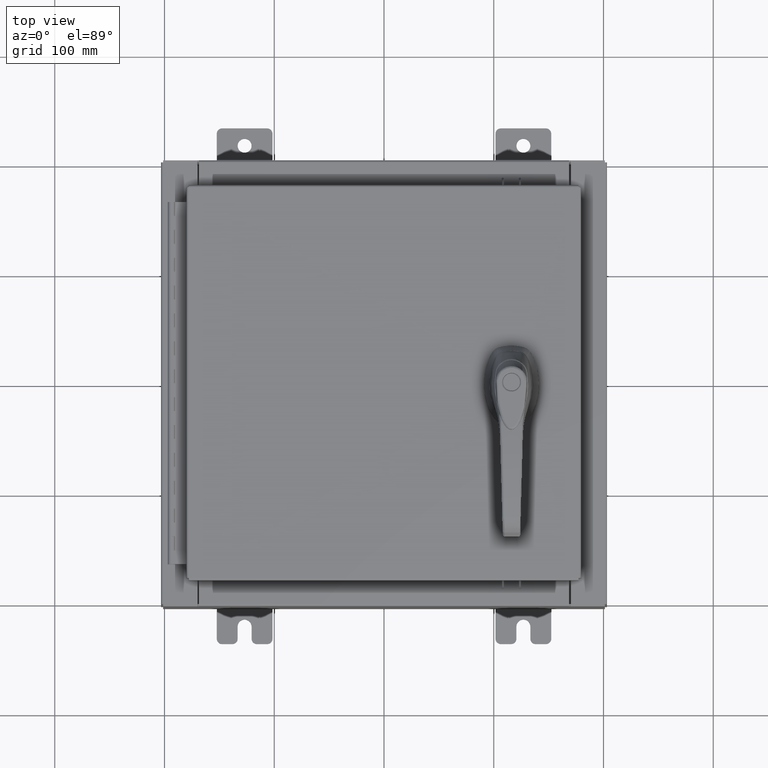
[diagram: clean part render]
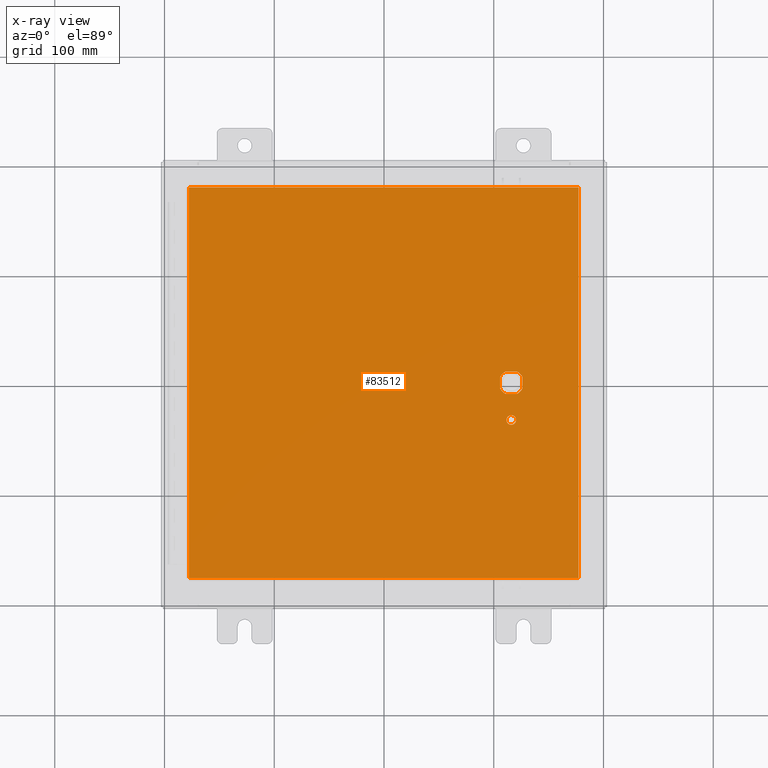
[diagram: x-ray — body ghosted, one internal face saturated and labeled with its STEP entity id]
A machine part, top view, then the same camera in x-ray: the body is ghosted and one INTERNAL B-rep face — a face not visible from any outside direction — is saturated and labeled: STEP entity #83512.
In plain terms, the highlighted planar face has unit normal (0, 0, -1).
Its self-contained STEP definition (entity closure, byte-faithful):
#3910 = VERTEX_POINT ( 'NONE', #91692 ) ;
#4758 = VERTEX_POINT ( 'NONE', #72964 ) ;
#5798 = CARTESIAN_POINT ( 'NONE',  ( 4.778227370756312100, 0.4029999999999250300, -0.07470000000000003000 ) ) ;
#6132 = DIRECTION ( 'NONE',  ( -1.000000000000000000, 0.0000000000000000000, 0.0000000000000000000 ) ) ;
#6270 = DIRECTION ( 'NONE',  ( -0.0000000000000000000, -0.0000000000000000000, 1.000000000000000000 ) ) ;
#6605 = DIRECTION ( 'NONE',  ( -1.000000000000000000, 0.0000000000000000000, 0.0000000000000000000 ) ) ;
#7821 = FACE_BOUND ( 'NONE', #38919, .T. ) ;
#8196 = EDGE_CURVE ( 'NONE', #69418, #85312, #105364, .T. ) ;
#8327 = CARTESIAN_POINT ( 'NONE',  ( 6.990299999999998600, 7.006300000000000400, -0.07470000000000021100 ) ) ;
#9001 = DIRECTION ( 'NONE',  ( 0.0000000000000000000, -1.000000000000000000, 0.0000000000000000000 ) ) ;
#10261 = EDGE_CURVE ( 'NONE', #33672, #28836, #96371, .T. ) ;
#10467 = ORIENTED_EDGE ( 'NONE', *, *, #8196, .T. ) ;
#10896 = VERTEX_POINT ( 'NONE', #104746 ) ;
#11525 = EDGE_CURVE ( 'NONE', #3910, #16281, #13104, .T. ) ;
#12029 = CARTESIAN_POINT ( 'NONE',  ( 0.0000000000000000000, 0.4029999999999252000, -0.07470000000000003000 ) ) ;
#12117 = DIRECTION ( 'NONE',  ( 0.0000000000000000000, 0.0000000000000000000, -1.000000000000000000 ) ) ;
#13104 = LINE ( 'NONE', #67116, #97506 ) ;
#13418 = VERTEX_POINT ( 'NONE', #19607 ) ;
#15057 = CARTESIAN_POINT ( 'NONE',  ( 4.175000000000076200, 0.0000000000000000000, -0.07470000000000003000 ) ) ;
#16017 = CARTESIAN_POINT ( 'NONE',  ( 4.406500000000002100, -1.338000000000000100, -0.07470000000000003000 ) ) ;
#16085 = DIRECTION ( 'NONE',  ( -0.0000000000000000000, -0.0000000000000000000, 1.000000000000000000 ) ) ;
#16281 = VERTEX_POINT ( 'NONE', #70799 ) ;
#16432 = CARTESIAN_POINT ( 'NONE',  ( 4.578000000000002100, -1.338000000000000100, -0.07470000000000003000 ) ) ;
#16748 = LINE ( 'NONE', #40681, #35946 ) ;
#19607 = CARTESIAN_POINT ( 'NONE',  ( 4.980999999999927900, -0.2002273707563080300, -0.07470000000000003000 ) ) ;
#19616 = AXIS2_PLACEMENT_3D ( 'NONE', #16432, #73615, #24665 ) ;
#24665 = DIRECTION ( 'NONE',  ( -1.000000000000000000, 0.0000000000000000000, 0.0000000000000000000 ) ) ;
#25997 = DIRECTION ( 'NONE',  ( 0.0000000000000000000, 1.000000000000000000, 0.0000000000000000000 ) ) ;
#26224 = EDGE_LOOP ( 'NONE', ( #50381, #61666, #93583, #70624 ) ) ;
#27062 = EDGE_CURVE ( 'NONE', #39515, #13418, #42378, .T. ) ;
#27109 = AXIS2_PLACEMENT_3D ( 'NONE', #43903, #101053, #52122 ) ;
#28832 = LINE ( 'NONE', #12029, #72277 ) ;
#28836 = VERTEX_POINT ( 'NONE', #101077 ) ;
#29290 = CARTESIAN_POINT ( 'NONE',  ( 4.778227370756312100, -0.4029999999999252000, -0.07470000000000003000 ) ) ;
#29554 = FACE_OUTER_BOUND ( 'NONE', #26224, .T. ) ;
#31612 = VECTOR ( 'NONE', #88662, 39.37007874015748100 ) ;
#32623 = ORIENTED_EDGE ( 'NONE', *, *, #101354, .T. ) ;
#33377 = AXIS2_PLACEMENT_3D ( 'NONE', #55256, #6270, #63486 ) ;
#33557 = VERTEX_POINT ( 'NONE', #5798 ) ;
#33672 = VERTEX_POINT ( 'NONE', #81545 ) ;
#35101 = LINE ( 'NONE', #41797, #78491 ) ;
#35946 = VECTOR ( 'NONE', #89590, 39.37007874015748100 ) ;
#36062 = EDGE_CURVE ( 'NONE', #28836, #39515, #35101, .T. ) ;
#36268 = LINE ( 'NONE', #8327, #41394 ) ;
#38919 = EDGE_LOOP ( 'NONE', ( #72654, #72024, #76697, #57111, #32623, #83471, #81635, #101330 ) ) ;
#39515 = VERTEX_POINT ( 'NONE', #29290 ) ;
#40681 = CARTESIAN_POINT ( 'NONE',  ( -6.990300000000001300, -7.006300000000000400, -0.07470000000000021100 ) ) ;
#41394 = VECTOR ( 'NONE', #58012, 39.37007874015748100 ) ;
#41797 = CARTESIAN_POINT ( 'NONE',  ( 0.0000000000000000000, -0.4029999999999252000, -0.07470000000000003000 ) ) ;
#42378 = CIRCLE ( 'NONE', #58580, 0.4499999999999156900 ) ;
#43710 = AXIS2_PLACEMENT_3D ( 'NONE', #44299, #12117, #69301 ) ;
#43903 = CARTESIAN_POINT ( 'NONE',  ( 4.578000000000002100, 0.0000000000000000000, -0.07470000000000003000 ) ) ;
#44299 = CARTESIAN_POINT ( 'NONE',  ( 0.0000000000000000000, 0.0000000000000000000, -0.07470000000000000300 ) ) ;
#45937 = LINE ( 'NONE', #97368, #70236 ) ;
#46833 = AXIS2_PLACEMENT_3D ( 'NONE', #104521, #55613, #6605 ) ;
#49726 = EDGE_CURVE ( 'NONE', #4758, #74643, #92924, .T. ) ;
#49983 = DIRECTION ( 'NONE',  ( 1.000000000000000000, 0.0000000000000000000, 0.0000000000000000000 ) ) ;
#50381 = ORIENTED_EDGE ( 'NONE', *, *, #11525, .F. ) ;
#52122 = DIRECTION ( 'NONE',  ( -1.000000000000000000, 8.881784197001256300E-016, 0.0000000000000000000 ) ) ;
#53088 = CARTESIAN_POINT ( 'NONE',  ( -6.990300000000000400, -7.006300000000000400, -0.07470000000000000300 ) ) ;
#53216 = CARTESIAN_POINT ( 'NONE',  ( 4.175000000000076200, 0.2002273707563080300, -0.07470000000000003000 ) ) ;
#54093 = EDGE_CURVE ( 'NONE', #16281, #4758, #36268, .T. ) ;
#54613 = VECTOR ( 'NONE', #9001, 39.37007874015748100 ) ;
#55114 = DIRECTION ( 'NONE',  ( -0.0000000000000000000, -0.0000000000000000000, 1.000000000000000000 ) ) ;
#55256 = CARTESIAN_POINT ( 'NONE',  ( 4.578000000000002100, 0.0000000000000000000, -0.07470000000000003000 ) ) ;
#55613 = DIRECTION ( 'NONE',  ( -0.0000000000000000000, -0.0000000000000000000, 1.000000000000000000 ) ) ;
#56658 = EDGE_CURVE ( 'NONE', #33557, #62104, #28832, .T. ) ;
#56840 = CIRCLE ( 'NONE', #46833, 0.4499999999999156900 ) ;
#57111 = ORIENTED_EDGE ( 'NONE', *, *, #56658, .T. ) ;
#58001 = CARTESIAN_POINT ( 'NONE',  ( -6.990300000000001300, 7.006300000000000400, -0.07469999999999965600 ) ) ;
#58012 = DIRECTION ( 'NONE',  ( -1.000000000000000000, -0.0000000000000000000, -0.0000000000000000000 ) ) ;
#58580 = AXIS2_PLACEMENT_3D ( 'NONE', #65087, #16085, #73251 ) ;
#61666 = ORIENTED_EDGE ( 'NONE', *, *, #83708, .F. ) ;
#62104 = VERTEX_POINT ( 'NONE', #93409 ) ;
#63449 = ORIENTED_EDGE ( 'NONE', *, *, #95652, .T. ) ;
#63486 = DIRECTION ( 'NONE',  ( -1.000000000000000000, 0.0000000000000000000, 0.0000000000000000000 ) ) ;
#65087 = CARTESIAN_POINT ( 'NONE',  ( 4.578000000000002100, 0.0000000000000000000, -0.07470000000000003000 ) ) ;
#67116 = CARTESIAN_POINT ( 'NONE',  ( 6.990299999999998600, -7.006300000000000400, -0.07470000000000021100 ) ) ;
#68721 = AXIS2_PLACEMENT_3D ( 'NONE', #104027, #55114, #6132 ) ;
#69227 = DIRECTION ( 'NONE',  ( -1.000000000000000000, 0.0000000000000000000, 0.0000000000000000000 ) ) ;
#69301 = DIRECTION ( 'NONE',  ( -1.000000000000000000, 0.0000000000000000000, -0.0000000000000000000 ) ) ;
#69418 = VERTEX_POINT ( 'NONE', #91629 ) ;
#70236 = VECTOR ( 'NONE', #81297, 39.37007874015748100 ) ;
#70624 = ORIENTED_EDGE ( 'NONE', *, *, #54093, .F. ) ;
#70799 = CARTESIAN_POINT ( 'NONE',  ( 6.990299999999997700, 7.006300000000000400, -0.07470000000000000300 ) ) ;
#72024 = ORIENTED_EDGE ( 'NONE', *, *, #99202, .F. ) ;
#72277 = VECTOR ( 'NONE', #69227, 39.37007874015748100 ) ;
#72654 = ORIENTED_EDGE ( 'NONE', *, *, #27062, .T. ) ;
#72964 = CARTESIAN_POINT ( 'NONE',  ( -6.990300000000001300, 7.006299999999998600, -0.07470000000000000300 ) ) ;
#73251 = DIRECTION ( 'NONE',  ( -1.000000000000000000, 0.0000000000000000000, 0.0000000000000000000 ) ) ;
#73615 = DIRECTION ( 'NONE',  ( -0.0000000000000000000, -0.0000000000000000000, 1.000000000000000000 ) ) ;
#74643 = VERTEX_POINT ( 'NONE', #53088 ) ;
#76161 = EDGE_CURVE ( 'NONE', #10896, #33557, #56840, .T. ) ;
#76697 = ORIENTED_EDGE ( 'NONE', *, *, #76161, .T. ) ;
#78491 = VECTOR ( 'NONE', #49983, 39.37007874015748100 ) ;
#81297 = DIRECTION ( 'NONE',  ( 0.0000000000000000000, -1.000000000000000000, 0.0000000000000000000 ) ) ;
#81545 = CARTESIAN_POINT ( 'NONE',  ( 4.175000000000076200, -0.2002273707563079800, -0.07470000000000003000 ) ) ;
#81635 = ORIENTED_EDGE ( 'NONE', *, *, #10261, .T. ) ;
#83471 = ORIENTED_EDGE ( 'NONE', *, *, #102281, .T. ) ;
#83512 = ADVANCED_FACE ( 'NONE', ( #92183, #29554, #7821 ), #101803, .T. ) ;
#83708 = EDGE_CURVE ( 'NONE', #74643, #3910, #16748, .T. ) ;
#85312 = VERTEX_POINT ( 'NONE', #16017 ) ;
#88662 = DIRECTION ( 'NONE',  ( 0.0000000000000000000, -1.000000000000000000, 0.0000000000000000000 ) ) ;
#89590 = DIRECTION ( 'NONE',  ( 1.000000000000000000, -0.0000000000000000000, -0.0000000000000000000 ) ) ;
#91629 = CARTESIAN_POINT ( 'NONE',  ( 4.749500000000002100, -1.338000000000000100, -0.07470000000000003000 ) ) ;
#91679 = LINE ( 'NONE', #15057, #31612 ) ;
#91692 = CARTESIAN_POINT ( 'NONE',  ( 6.990299999999998600, -7.006300000000000400, -0.07470000000000000300 ) ) ;
#92183 = FACE_BOUND ( 'NONE', #95170, .T. ) ;
#92924 = LINE ( 'NONE', #58001, #54613 ) ;
#93409 = CARTESIAN_POINT ( 'NONE',  ( 4.377772629243692900, 0.4029999999999252000, -0.07470000000000003000 ) ) ;
#93583 = ORIENTED_EDGE ( 'NONE', *, *, #49726, .F. ) ;
#95170 = EDGE_LOOP ( 'NONE', ( #10467, #63449 ) ) ;
#95652 = EDGE_CURVE ( 'NONE', #85312, #69418, #100012, .T. ) ;
#96371 = CIRCLE ( 'NONE', #27109, 0.4499999999999156900 ) ;
#97368 = CARTESIAN_POINT ( 'NONE',  ( 4.980999999999927900, 0.0000000000000000000, -0.07470000000000003000 ) ) ;
#97506 = VECTOR ( 'NONE', #25997, 39.37007874015748100 ) ;
#99202 = EDGE_CURVE ( 'NONE', #10896, #13418, #45937, .T. ) ;
#100012 = CIRCLE ( 'NONE', #19616, 0.1715000000000000700 ) ;
#101053 = DIRECTION ( 'NONE',  ( -0.0000000000000000000, -0.0000000000000000000, 1.000000000000000000 ) ) ;
#101077 = CARTESIAN_POINT ( 'NONE',  ( 4.377772629243692900, -0.4029999999999250300, -0.07470000000000003000 ) ) ;
#101330 = ORIENTED_EDGE ( 'NONE', *, *, #36062, .T. ) ;
#101354 = EDGE_CURVE ( 'NONE', #62104, #102666, #105805, .T. ) ;
#101803 = PLANE ( 'NONE',  #43710 ) ;
#102281 = EDGE_CURVE ( 'NONE', #102666, #33672, #91679, .T. ) ;
#102666 = VERTEX_POINT ( 'NONE', #53216 ) ;
#104027 = CARTESIAN_POINT ( 'NONE',  ( 4.578000000000002100, -1.338000000000000100, -0.07470000000000003000 ) ) ;
#104521 = CARTESIAN_POINT ( 'NONE',  ( 4.578000000000002100, 0.0000000000000000000, -0.07470000000000003000 ) ) ;
#104746 = CARTESIAN_POINT ( 'NONE',  ( 4.980999999999927900, 0.2002273707563080300, -0.07470000000000003000 ) ) ;
#105364 = CIRCLE ( 'NONE', #68721, 0.1715000000000000700 ) ;
#105805 = CIRCLE ( 'NONE', #33377, 0.4499999999999156900 ) ;